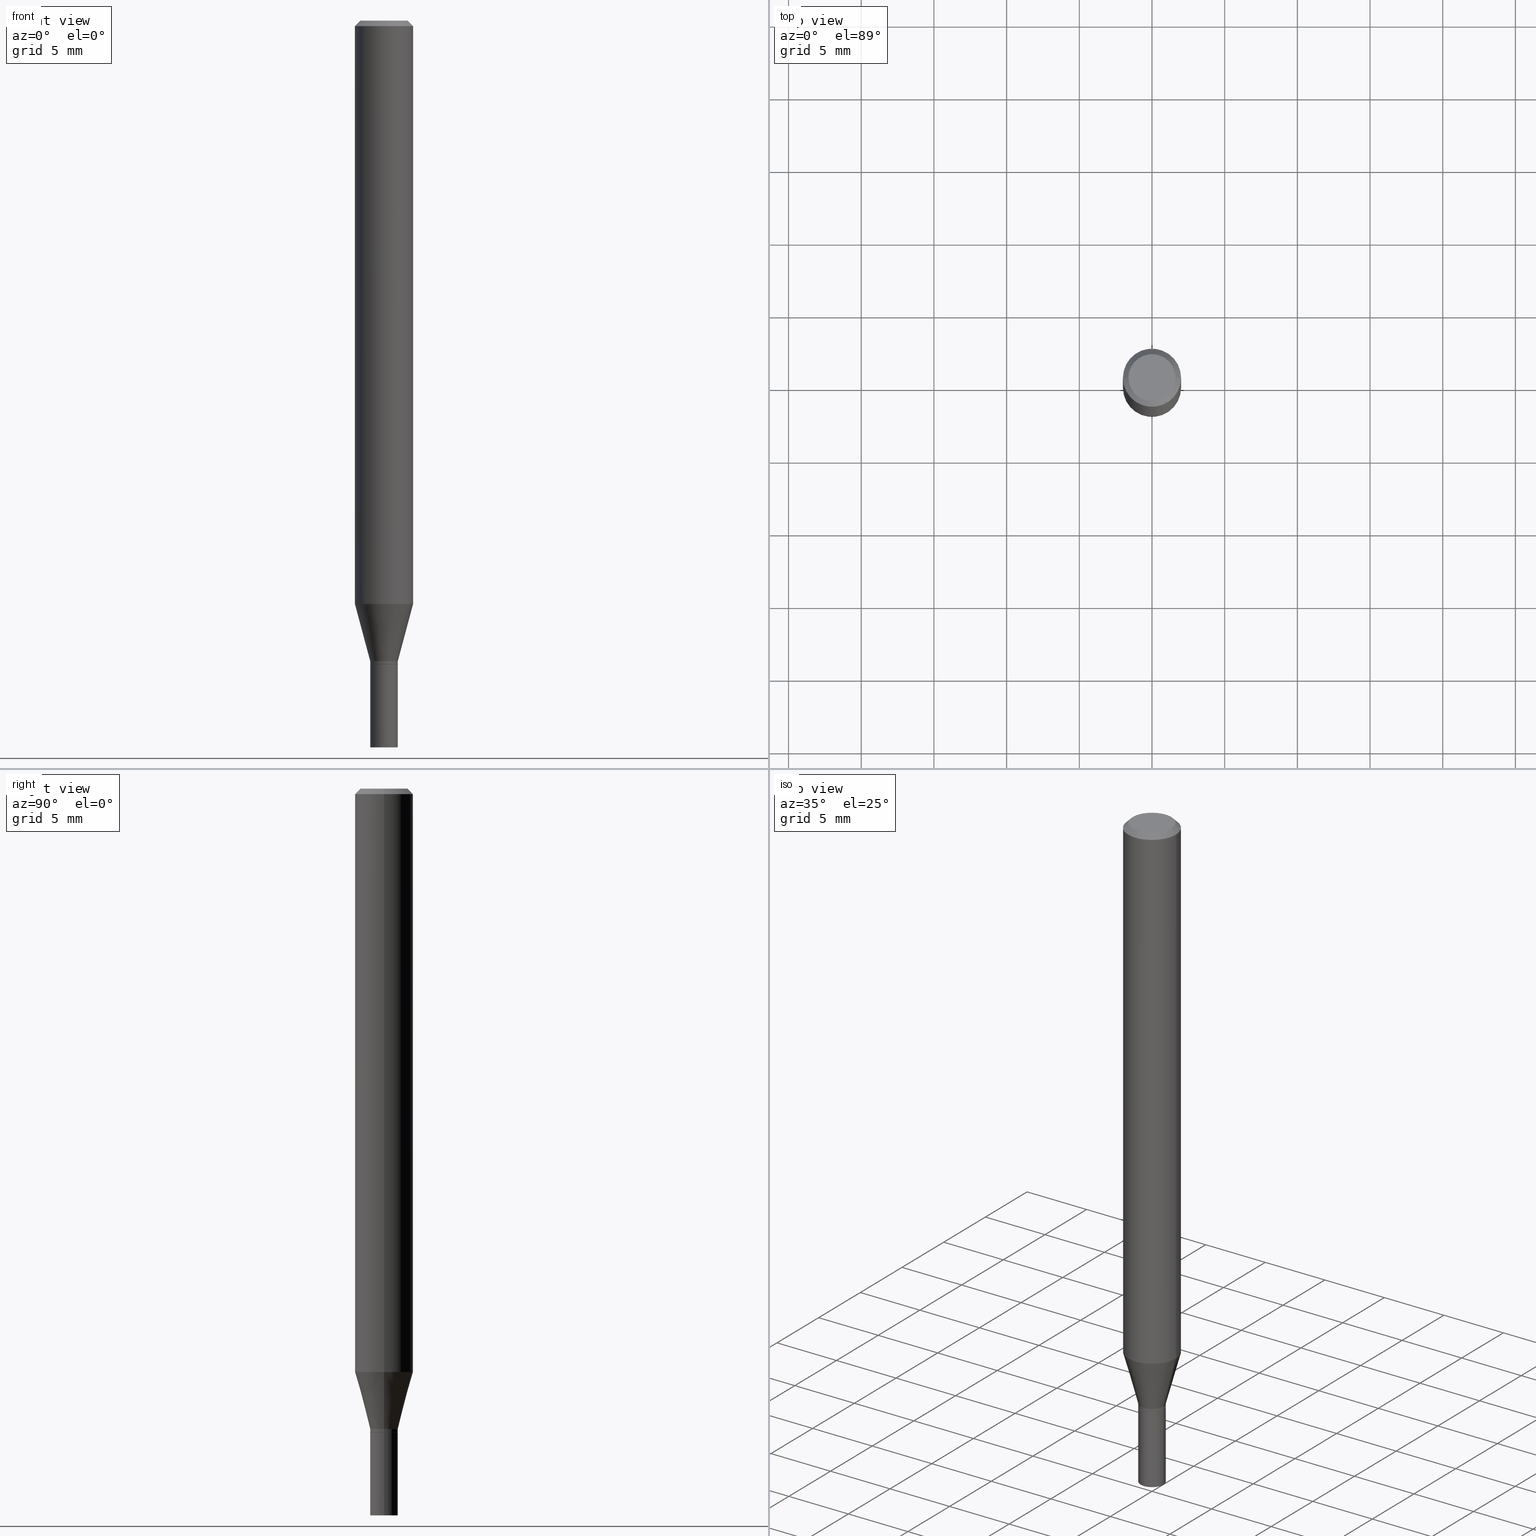
[diagram: canonical four-view strip — front | top / right | iso, engineering-drawing reading convention]
A machine part, canonical four-view strip (front | top / right | iso — engineering-drawing reading convention). The complete STEP part file that produces these views, byte-faithful:
ISO-10303-21;
HEADER;
FILE_DESCRIPTION (( 'STEP AP203' ),
    '1' );
FILE_NAME ('01892.STEP',
    '2024-03-20T02:32:51',
    ( '' ),
    ( '' ),
    'SwSTEP 2.0',
    'SolidWorks 2023',
    '' );
FILE_SCHEMA (( 'CONFIG_CONTROL_DESIGN' ));
ENDSEC;

DATA;
#1 = ORIENTED_EDGE ( 'NONE', *, *, #238, .F. ) ;
#2 = EDGE_CURVE ( 'NONE', #130, #21, #203, .T. ) ;
#3 = DIRECTION ( 'NONE',  ( 1.000000000000000000, 0.000000000000000000, 0.000000000000000000 ) ) ;
#4 = CARTESIAN_POINT ( 'NONE',  ( 8.580606167969272650E-45, -1.225083151159157695E-30, -3.508777599725256540E-16 ) ) ;
#5 = AXIS2_PLACEMENT_3D ( 'NONE', #148, #191, #55 ) ;
#6 = PERSON_AND_ORGANIZATION_ROLE ( 'design_owner' ) ;
#7 = CARTESIAN_POINT ( 'NONE',  ( 0.03690000000000000224, -6.347163925882955111E-15, -1.744100000000000428 ) ) ;
#8 = CALENDAR_DATE ( 2024, 19, 3 ) ;
#9 = FACE_OUTER_BOUND ( 'NONE', #128, .T. ) ;
#10 = PERSON_AND_ORGANIZATION_ROLE ( 'classification_officer' ) ;
#11 = CARTESIAN_POINT ( 'NONE',  ( -0.07875000000000000056, -4.957615527039885735E-15, -1.580179699107028268 ) ) ;
#12 = AXIS2_PLACEMENT_3D ( 'NONE', #247, #212, #113 ) ;
#13 = CONICAL_SURFACE ( 'NONE', #169, 0.03740000000000019698, 0.2617993877991502405 ) ;
#14 = CARTESIAN_POINT ( 'NONE',  ( 0.03739999999999992636, -2.611628041454658579E-16, 1.823690114147676228E-30 ) ) ;
#15 = ADVANCED_FACE ( 'NONE', ( #9 ), #138, .F. ) ;
#16 = DIRECTION ( 'NONE',  ( 1.000000000000000000, -6.982962677686261189E-15, 0.000000000000000000 ) ) ;
#17 = VERTEX_POINT ( 'NONE', #7 ) ;
#18 = CARTESIAN_POINT ( 'NONE',  ( 0.03690000000000000224, -6.347163925882955111E-15, -1.744100000000000428 ) ) ;
#19 = VECTOR ( 'NONE', #201, 39.37007874015748143 ) ;
#20 = FACE_OUTER_BOUND ( 'NONE', #383, .T. ) ;
#21 = VERTEX_POINT ( 'NONE', #286 ) ;
#22 = EDGE_CURVE ( 'NONE', #458, #243, #111, .T. ) ;
#23 = FACE_OUTER_BOUND ( 'NONE', #221, .T. ) ;
#24 = CARTESIAN_POINT ( 'NONE',  ( -0.03740000000000000269, -6.215493826120253928E-15, -1.744100000000000206 ) ) ;
#25 = ADVANCED_FACE ( 'NONE', ( #368 ), #386, .T. ) ;
#26 = CARTESIAN_POINT ( 'NONE',  ( 3.864280162333252269E-29, -5.517167931450965325E-15, -1.580179699107028268 ) ) ;
#27 = AXIS2_PLACEMENT_3D ( 'NONE', #197, #58, #311 ) ;
#28 = ORIENTED_EDGE ( 'NONE', *, *, #109, .F. ) ;
#29 = DIRECTION ( 'NONE',  ( -2.445468806185136597E-29, 3.491481338843145583E-15, 1.000000000000000000 ) ) ;
#30 = ORIENTED_EDGE ( 'NONE', *, *, #415, .F. ) ;
#31 = DIRECTION ( 'NONE',  ( 1.000000000000000000, -6.982962677686261977E-15, 0.000000000000000000 ) ) ;
#32 = ORIENTED_EDGE ( 'NONE', *, *, #375, .T. ) ;
#33 = DIRECTION ( 'NONE',  ( -2.445468806185136597E-29, 3.491481338843145583E-15, 1.000000000000000000 ) ) ;
#34 = CLOSED_SHELL ( 'NONE', ( #359, #241, #244, #52, #407, #173, #102, #25, #90, #15, #177, #139 ) ) ;
#35 = ORIENTED_EDGE ( 'NONE', *, *, #399, .T. ) ;
#36 = AXIS2_PLACEMENT_3D ( 'NONE', #455, #353, #423 ) ;
#37 = DATE_AND_TIME ( #466, #118 ) ;
#38 = ORIENTED_EDGE ( 'NONE', *, *, #22, .T. ) ;
#39 = CARTESIAN_POINT ( 'NONE',  ( -0.07875000000000000056, 4.975360907851462665E-16, -0.01499999999999999944 ) ) ;
#40 = PERSON_AND_ORGANIZATION ( #182, #370 ) ;
#41 = CC_DESIGN_DATE_AND_TIME_ASSIGNMENT ( #330, #441, ( #98 ) ) ;
#42 = CARTESIAN_POINT ( 'NONE',  ( 4.265142144867497014E-29, -6.089492603076330929E-15, -1.744100000000000206 ) ) ;
#43 = AXIS2_PLACEMENT_3D ( 'NONE', #73, #252, #3 ) ;
#44 = CARTESIAN_POINT ( 'NONE',  ( 3.668203209277705088E-31, -5.237222008264718399E-17, -0.01499999999999999944 ) ) ;
#45 = DIRECTION ( 'NONE',  ( -0.7071067811861793118, 7.493145998869024141E-15, 0.7071067811869157227 ) ) ;
#46 = CARTESIAN_POINT ( 'NONE',  ( 0.07875000000000000056, -5.499083108677934443E-16, 3.839989210939299016E-30 ) ) ;
#47 = AXIS2_PLACEMENT_3D ( 'NONE', #452, #319, #126 ) ;
#48 = APPLICATION_CONTEXT ( 'configuration controlled 3d designs of mechanical parts and assemblies' ) ;
#49 = CARTESIAN_POINT ( 'NONE',  ( 4.813905344975441835E-29, -6.872981015512731707E-15, -1.968500000000000139 ) ) ;
#50 = ORIENTED_EDGE ( 'NONE', *, *, #429, .T. ) ;
#51 = CARTESIAN_POINT ( 'NONE',  ( 3.668203209277705088E-31, -5.237222008264718399E-17, -0.01499999999999999944 ) ) ;
#52 = ADVANCED_FACE ( 'NONE', ( #181 ), #79, .T. ) ;
#53 = DIRECTION ( 'NONE',  ( 1.000000000000000000, -6.982962677686274599E-15, 0.000000000000000000 ) ) ;
#54 = AXIS2_PLACEMENT_3D ( 'NONE', #335, #152, #339 ) ;
#55 = DIRECTION ( 'NONE',  ( 1.000000000000000000, -6.982962677686261189E-15, 0.000000000000000000 ) ) ;
#56 = EDGE_CURVE ( 'NONE', #69, #21, #296, .T. ) ;
#57 = DIRECTION ( 'NONE',  ( -2.445468806185136597E-29, 3.491481338843145583E-15, 1.000000000000000000 ) ) ;
#58 = DIRECTION ( 'NONE',  ( -2.445468806185136597E-29, 3.491481338843145583E-15, 1.000000000000000000 ) ) ;
#59 = ORIENTED_EDGE ( 'NONE', *, *, #56, .F. ) ;
#60 = AXIS2_PLACEMENT_3D ( 'NONE', #438, #416, #343 ) ;
#61 = AXIS2_PLACEMENT_3D ( 'NONE', #337, #265, #225 ) ;
#62 = ORIENTED_EDGE ( 'NONE', *, *, #174, .T. ) ;
#63 = CC_DESIGN_PERSON_AND_ORGANIZATION_ASSIGNMENT ( #214, #10, ( #98 ) ) ;
#64 = ORIENTED_EDGE ( 'NONE', *, *, #374, .F. ) ;
#65 = CARTESIAN_POINT ( 'NONE',  ( 3.668203209277705088E-31, -5.237222008264718399E-17, -0.01499999999999999944 ) ) ;
#66 = ORIENTED_EDGE ( 'NONE', *, *, #356, .F. ) ;
#67 = UNCERTAINTY_MEASURE_WITH_UNIT (LENGTH_MEASURE( 1.000000000000000082E-05 ), #323, 'distance_accuracy_value', 'NONE');
#68 = CARTESIAN_POINT ( 'NONE',  ( 0.03740000000000000269, -2.611628041454664002E-16, 1.823690114147680082E-30 ) ) ;
#69 = VERTEX_POINT ( 'NONE', #72 ) ;
#70 = AXIS2_PLACEMENT_3D ( 'NONE', #450, #418, #219 ) ;
#71 = PERSON_AND_ORGANIZATION ( #182, #370 ) ;
#72 = CARTESIAN_POINT ( 'NONE',  ( -0.03690000000000000224, -5.824653106406745603E-15, -1.744100000000000428 ) ) ;
#73 = CARTESIAN_POINT ( 'NONE',  ( 0.000000000000000000, 0.000000000000000000, 0.000000000000000000 ) ) ;
#74 = CARTESIAN_POINT ( 'NONE',  ( 4.451638707024993845E-16, 0.06375000000000000111, -3.980208153375133574E-16 ) ) ;
#75 = APPROVAL_ROLE ( '' ) ;
#76 = CIRCLE ( 'NONE', #453, 0.07875000000000000056 ) ;
#77 = DIMENSIONAL_EXPONENTS ( 1.000000000000000000, 0.000000000000000000, 0.000000000000000000, 0.000000000000000000, 0.000000000000000000, 0.000000000000000000, 0.000000000000000000 ) ;
#78 = APPROVAL_DATE_TIME ( #140, #155 ) ;
#79 = CYLINDRICAL_SURFACE ( 'NONE', #451, 0.07875000000000000056 ) ;
#80 = MANIFOLD_SOLID_BREP ( 'Body-Move/Copy2[1]', #146 ) ;
#81 = DIRECTION ( 'NONE',  ( -2.445468806185136597E-29, 3.491481338843145583E-15, 1.000000000000000000 ) ) ;
#82 = DIRECTION ( 'NONE',  ( 0.7071067811861793118, -2.468850131078399925E-15, 0.7071067811869157227 ) ) ;
#83 = ORIENTED_EDGE ( 'NONE', *, *, #290, .F. ) ;
#84 = AXIS2_PLACEMENT_3D ( 'NONE', #74, #209, #409 ) ;
#85 = CIRCLE ( 'NONE', #195, 0.07875000000000000056 ) ;
#86 = CARTESIAN_POINT ( 'NONE',  ( 4.813905344975441835E-29, -6.872981015512731707E-15, -1.968500000000000139 ) ) ;
#87 = ORIENTED_EDGE ( 'NONE', *, *, #356, .T. ) ;
#88 = CARTESIAN_POINT ( 'NONE',  ( 4.265142144867497574E-29, -6.089492603076331718E-15, -1.744100000000000428 ) ) ;
#89 = CARTESIAN_POINT ( 'NONE',  ( -0.03740000000000000269, 2.657429831742774886E-16, -1.839681723755335040E-30 ) ) ;
#90 = ADVANCED_FACE ( 'NONE', ( #249 ), #331, .F. ) ;
#91 = CIRCLE ( 'NONE', #211, 0.03740000000000000269 ) ;
#92 = DIRECTION ( 'NONE',  ( -2.445468806185136597E-29, 3.491481338843145583E-15, 1.000000000000000000 ) ) ;
#93 = CYLINDRICAL_SURFACE ( 'NONE', #27, 0.03740000000000000269 ) ;
#94 = VERTEX_POINT ( 'NONE', #11 ) ;
#95 =( LENGTH_UNIT ( ) NAMED_UNIT ( * ) SI_UNIT ( $, .METRE. ) );
#96 = ORIENTED_EDGE ( 'NONE', *, *, #213, .T. ) ;
#97 = DIRECTION ( 'NONE',  ( -2.445468806185136597E-29, 3.491481338843145583E-15, 1.000000000000000000 ) ) ;
#98 = SECURITY_CLASSIFICATION ( '', '', #439 ) ;
#99 = ORIENTED_EDGE ( 'NONE', *, *, #200, .T. ) ;
#100 = CARTESIAN_POINT ( 'NONE',  ( 0.07875000000000000056, -6.067076242318758671E-15, -1.580179699107028268 ) ) ;
#101 = VERTEX_POINT ( 'NONE', #145 ) ;
#102 = ADVANCED_FACE ( 'NONE', ( #207 ), #110, .T. ) ;
#103 = CARTESIAN_POINT ( 'NONE',  ( 2.611628041455089987E-16, 0.03739999999999391034, -1.744100000000000206 ) ) ;
#104 = EDGE_LOOP ( 'NONE', ( #150, #87, #420, #170 ) ) ;
#105 = APPROVAL_STATUS ( 'not_yet_approved' ) ;
#106 = CIRCLE ( 'NONE', #176, 0.03690000000000000224 ) ;
#107 = COORDINATED_UNIVERSAL_TIME_OFFSET ( 5, 0, .BEHIND. ) ;
#108 = CARTESIAN_POINT ( 'NONE',  ( 0.03740000000000019698, -6.317137186368903672E-15, -1.734499999999999931 ) ) ;
#109 = EDGE_CURVE ( 'NONE', #101, #357, #324, .T. ) ;
#110 = CYLINDRICAL_SURFACE ( 'NONE', #159, 0.07875000000000000056 ) ;
#111 = LINE ( 'NONE', #39, #270 ) ;
#112 = APPROVAL_STATUS ( 'not_yet_approved' ) ;
#113 = DIRECTION ( 'NONE',  ( 1.000000000000000000, -6.982962677686262766E-15, 0.000000000000000000 ) ) ;
#114 = EDGE_CURVE ( 'NONE', #357, #424, #402, .T. ) ;
#115 = DIRECTION ( 'NONE',  ( -2.445468806185136597E-29, 3.491481338843145583E-15, 1.000000000000000000 ) ) ;
#116 = CARTESIAN_POINT ( 'NONE',  ( 0.06375000000000000111, -5.149965923825457196E-16, -3.508777599725223014E-16 ) ) ;
#117 = VECTOR ( 'NONE', #121, 39.37007874015748143 ) ;
#118 = LOCAL_TIME ( 22, 32, 51.00000000000000000, #408 ) ;
#119 = CARTESIAN_POINT ( 'NONE',  ( -0.03739999999999992636, 2.657429831742769463E-16, -1.839681723755330837E-30 ) ) ;
#120 = EDGE_LOOP ( 'NONE', ( #172, #99, #267, #425 ) ) ;
#121 = DIRECTION ( 'NONE',  ( -2.445468806185136877E-29, 3.491481338843145188E-15, 1.000000000000000000 ) ) ;
#122 = EDGE_CURVE ( 'NONE', #458, #276, #411, .T. ) ;
#123 = CC_DESIGN_PERSON_AND_ORGANIZATION_ASSIGNMENT ( #40, #365, ( #318 ) ) ;
#124 = DIRECTION ( 'NONE',  ( 1.000000000000000000, -6.982962677686265133E-15, 0.000000000000000000 ) ) ;
#125 = CIRCLE ( 'NONE', #47, 0.03739999999999964880 ) ;
#126 = DIRECTION ( 'NONE',  ( 1.000000000000000000, -6.982962677686262766E-15, 0.000000000000000000 ) ) ;
#127 = DIRECTION ( 'NONE',  ( 1.000000000000000000, -6.982962677686261189E-15, 0.000000000000000000 ) ) ;
#128 = EDGE_LOOP ( 'NONE', ( #422, #372 ) ) ;
#129 = DIRECTION ( 'NONE',  ( 1.000000000000000000, -6.982962677686265922E-15, 0.000000000000000000 ) ) ;
#130 = VERTEX_POINT ( 'NONE', #333 ) ;
#131 = LINE ( 'NONE', #68, #228 ) ;
#132 = APPROVAL_PERSON_ORGANIZATION ( #71, #463, #142 ) ;
#133 = ORIENTED_EDGE ( 'NONE', *, *, #258, .T. ) ;
#134 = CARTESIAN_POINT ( 'NONE',  ( -0.03740000000000000269, -6.215493826120253928E-15, -1.968500000000000139 ) ) ;
#135 = VERTEX_POINT ( 'NONE', #175 ) ;
#136 = SHAPE_DEFINITION_REPRESENTATION ( #388, #362 ) ;
#137 = CALENDAR_DATE ( 2024, 19, 3 ) ;
#138 = PLANE ( 'NONE',  #346 ) ;
#139 = ADVANCED_FACE ( 'NONE', ( #361 ), #328, .T. ) ;
#140 = DATE_AND_TIME ( #434, #442 ) ;
#141 = DIRECTION ( 'NONE',  ( -2.445468806185136597E-29, 3.491481338843145583E-15, 1.000000000000000000 ) ) ;
#142 = APPROVAL_ROLE ( '' ) ;
#143 = DIRECTION ( 'NONE',  ( 1.000000000000000000, -6.982962677686265922E-15, 4.876176775795935793E-29 ) ) ;
#144 = PERSON_AND_ORGANIZATION ( #182, #370 ) ;
#145 = CARTESIAN_POINT ( 'NONE',  ( 0.03740000000000019698, -6.317137186368903672E-15, -1.734499999999999931 ) ) ;
#146 = CLOSED_SHELL ( 'NONE', ( #223, #268, #334, #310 ) ) ;
#147 = CONICAL_SURFACE ( 'NONE', #379, 0.03740000000000019698, 0.2617993877991502405 ) ;
#148 = CARTESIAN_POINT ( 'NONE',  ( 4.265142144867497574E-29, -6.089492603076331718E-15, -1.744100000000000428 ) ) ;
#149 = FACE_OUTER_BOUND ( 'NONE', #120, .T. ) ;
#150 = ORIENTED_EDGE ( 'NONE', *, *, #415, .T. ) ;
#151 = EDGE_CURVE ( 'NONE', #21, #320, #266, .T. ) ;
#152 = DIRECTION ( 'NONE',  ( -2.445468806185136597E-29, 3.491481338843145583E-15, 1.000000000000000000 ) ) ;
#153 = AXIS2_PLACEMENT_3D ( 'NONE', #301, #300, #373 ) ;
#154 = FACE_OUTER_BOUND ( 'NONE', #352, .T. ) ;
#155 = APPROVAL ( #206, 'UNSPECIFIED' ) ;
#156 = CARTESIAN_POINT ( 'NONE',  ( 4.265142144867497014E-29, -6.089492603076330929E-15, -1.744100000000000206 ) ) ;
#157 = ORIENTED_EDGE ( 'NONE', *, *, #258, .F. ) ;
#158 = FACE_OUTER_BOUND ( 'NONE', #162, .T. ) ;
#159 = AXIS2_PLACEMENT_3D ( 'NONE', #437, #141, #443 ) ;
#160 = CIRCLE ( 'NONE', #404, 0.03740000000000000269 ) ;
#161 = DIRECTION ( 'NONE',  ( 2.438088387897960049E-29, -3.491481338843145188E-15, -1.000000000000000000 ) ) ;
#162 = EDGE_LOOP ( 'NONE', ( #199, #188 ) ) ;
#163 = CARTESIAN_POINT ( 'NONE',  ( 4.241665644328119485E-29, -6.055974382223435694E-15, -1.734499999999999931 ) ) ;
#164 = APPLICATION_CONTEXT ( 'configuration controlled 3d designs of mechanical parts and assemblies' ) ;
#165 = ORIENTED_EDGE ( 'NONE', *, *, #2, .F. ) ;
#166 = LINE ( 'NONE', #275, #246 ) ;
#167 = EDGE_LOOP ( 'NONE', ( #338, #350, #281, #278 ) ) ;
#168 = DIRECTION ( 'NONE',  ( 1.000000000000000000, -6.982962677686266711E-15, 4.876176775795935232E-29 ) ) ;
#169 = AXIS2_PLACEMENT_3D ( 'NONE', #306, #378, #124 ) ;
#170 = ORIENTED_EDGE ( 'NONE', *, *, #114, .F. ) ;
#171 = APPROVAL_DATE_TIME ( #37, #217 ) ;
#172 = ORIENTED_EDGE ( 'NONE', *, *, #293, .T. ) ;
#173 = ADVANCED_FACE ( 'NONE', ( #20 ), #13, .T. ) ;
#174 = EDGE_CURVE ( 'NONE', #130, #101, #269, .T. ) ;
#175 = CARTESIAN_POINT ( 'NONE',  ( 0.03740000000000000269, -6.350655407221797329E-15, -1.744100000000000206 ) ) ;
#176 = AXIS2_PLACEMENT_3D ( 'NONE', #382, #29, #127 ) ;
#177 = ADVANCED_FACE ( 'NONE', ( #185 ), #271, .T. ) ;
#178 = PERSON_AND_ORGANIZATION ( #182, #370 ) ;
#179 = DIRECTION ( 'NONE',  ( 2.445468806185136597E-29, -3.491481338843145583E-15, -1.000000000000000000 ) ) ;
#180 = DATE_AND_TIME ( #137, #255 ) ;
#181 = FACE_OUTER_BOUND ( 'NONE', #104, .T. ) ;
#182 = PERSON ( 'UNSPECIFIED', 'UNSPECIFIED', 'UNSPECIFIED', ('UNSPECIFIED'), ('UNSPECIFIED'), ('UNSPECIFIED') ) ;
#183 = DIRECTION ( 'NONE',  ( 1.000000000000000000, -6.982962677686265922E-15, 4.852736867747365646E-29 ) ) ;
#184 = PRODUCT_RELATED_PRODUCT_CATEGORY ( 'detail', '', ( #297 ) ) ;
#185 = FACE_OUTER_BOUND ( 'NONE', #390, .T. ) ;
#186 = PLANE ( 'NONE',  #61 ) ;
#187 = LINE ( 'NONE', #230, #412 ) ;
#188 = ORIENTED_EDGE ( 'NONE', *, *, #394, .T. ) ;
#189 = CIRCLE ( 'NONE', #325, 0.07875000000000000056 ) ;
#190 = DIRECTION ( 'NONE',  ( -2.445468806185136877E-29, 3.491481338843145188E-15, 1.000000000000000000 ) ) ;
#191 = DIRECTION ( 'NONE',  ( -2.445468806185136597E-29, 3.491481338843145583E-15, 1.000000000000000000 ) ) ;
#192 = CC_DESIGN_DATE_AND_TIME_ASSIGNMENT ( #180, #401, ( #224 ) ) ;
#193 = CARTESIAN_POINT ( 'NONE',  ( 4.265142144867497014E-29, -6.089492603076330929E-15, -1.744100000000000206 ) ) ;
#194 = AXIS2_PLACEMENT_3D ( 'NONE', #44, #179, #406 ) ;
#195 = AXIS2_PLACEMENT_3D ( 'NONE', #51, #115, #449 ) ;
#196 = LOCAL_TIME ( 22, 32, 51.00000000000000000, #107 ) ;
#197 = CARTESIAN_POINT ( 'NONE',  ( 0.000000000000000000, 0.000000000000000000, 0.000000000000000000 ) ) ;
#198 = ORIENTED_EDGE ( 'NONE', *, *, #393, .T. ) ;
#199 = ORIENTED_EDGE ( 'NONE', *, *, #282, .T. ) ;
#200 = EDGE_CURVE ( 'NONE', #322, #403, #227, .T. ) ;
#201 = DIRECTION ( 'NONE',  ( -0.2588190451025215166, 5.211531920934551042E-15, 0.9659258262890679791 ) ) ;
#202 = EDGE_LOOP ( 'NONE', ( #66, #347, #237, #456 ) ) ;
#203 = CIRCLE ( 'NONE', #12, 0.03739999999999964880 ) ;
#204 = CIRCLE ( 'NONE', #220, 0.07875000000000000056 ) ;
#205 = EDGE_LOOP ( 'NONE', ( #432, #50, #62, #157 ) ) ;
#206 = APPROVAL_STATUS ( 'not_yet_approved' ) ;
#207 = FACE_OUTER_BOUND ( 'NONE', #202, .T. ) ;
#208 = APPLICATION_PROTOCOL_DEFINITION ( 'international standard', 'config_control_design', 1994, #48 ) ;
#209 = DIRECTION ( 'NONE',  ( 2.438088387897960049E-29, -3.491481338843145188E-15, -1.000000000000000000 ) ) ;
#210 = AXIS2_PLACEMENT_3D ( 'NONE', #4, #81, #183 ) ;
#211 = AXIS2_PLACEMENT_3D ( 'NONE', #49, #261, #303 ) ;
#212 = DIRECTION ( 'NONE',  ( -2.445468806185136597E-29, 3.491481338843145583E-15, 1.000000000000000000 ) ) ;
#213 = EDGE_CURVE ( 'NONE', #276, #424, #187, .T. ) ;
#214 = PERSON_AND_ORGANIZATION ( #182, #370 ) ;
#215 = CARTESIAN_POINT ( 'NONE',  ( 0.000000000000000000, 0.000000000000000000, 0.000000000000000000 ) ) ;
#216 = DIRECTION ( 'NONE',  ( 1.000000000000000000, -6.982962677686265922E-15, 4.876176775795935232E-29 ) ) ;
#217 = APPROVAL ( #112, 'UNSPECIFIED' ) ;
#218 = EDGE_CURVE ( 'NONE', #69, #17, #426, .T. ) ;
#219 = DIRECTION ( 'NONE',  ( 1.000000000000000000, -6.982962677686266711E-15, 4.876176775795935793E-29 ) ) ;
#220 = AXIS2_PLACEMENT_3D ( 'NONE', #26, #97, #308 ) ;
#221 = EDGE_LOOP ( 'NONE', ( #446, #387, #165, #83 ) ) ;
#222 = DIRECTION ( 'NONE',  ( -1.000000000000000000, 6.982962677686265922E-15, 0.000000000000000000 ) ) ;
#223 = ADVANCED_FACE ( 'NONE', ( #149 ), #444, .T. ) ;
#224 = PRODUCT_DEFINITION ( 'UNKNOWN', '', #318, #384 ) ;
#225 = DIRECTION ( 'NONE',  ( 1.000000000000000000, -6.982962677686265922E-15, 4.876176775795935793E-29 ) ) ;
#226 = MANIFOLD_SOLID_BREP ( 'Body-Move/Copy2[2]', #34 ) ;
#227 = LINE ( 'NONE', #89, #253 ) ;
#228 = VECTOR ( 'NONE', #315, 39.37007874015748143 ) ;
#229 = CC_DESIGN_APPROVAL ( #217, ( #98 ) ) ;
#230 = CARTESIAN_POINT ( 'NONE',  ( 0.07875000000000000056, -5.926364374071552647E-16, -0.01499999999999999944 ) ) ;
#231 = CARTESIAN_POINT ( 'NONE',  ( -0.03740000000000019698, -5.373923463044521625E-15, -1.734499999999999931 ) ) ;
#232 = ORIENTED_EDGE ( 'NONE', *, *, #394, .F. ) ;
#233 = LINE ( 'NONE', #459, #19 ) ;
#234 = ORIENTED_EDGE ( 'NONE', *, *, #122, .F. ) ;
#235 = AXIS2_PLACEMENT_3D ( 'NONE', #304, #413, #222 ) ;
#236 = FACE_OUTER_BOUND ( 'NONE', #396, .T. ) ;
#237 = ORIENTED_EDGE ( 'NONE', *, *, #114, .T. ) ;
#238 = EDGE_CURVE ( 'NONE', #322, #448, #160, .T. ) ;
#239 = CARTESIAN_POINT ( 'NONE',  ( 0.000000000000000000, 0.000000000000000000, 0.000000000000000000 ) ) ;
#240 = ORIENTED_EDGE ( 'NONE', *, *, #218, .T. ) ;
#241 = ADVANCED_FACE ( 'NONE', ( #23 ), #263, .T. ) ;
#242 = FACE_OUTER_BOUND ( 'NONE', #167, .T. ) ;
#243 = VERTEX_POINT ( 'NONE', #381 ) ;
#244 = ADVANCED_FACE ( 'NONE', ( #154 ), #369, .T. ) ;
#245 = VECTOR ( 'NONE', #291, 39.37007874015748143 ) ;
#246 = VECTOR ( 'NONE', #431, 39.37007874015748143 ) ;
#247 = CARTESIAN_POINT ( 'NONE',  ( 4.263919410464404773E-29, -6.087746862406909425E-15, -1.743600000000000261 ) ) ;
#248 = PERSON_AND_ORGANIZATION_ROLE ( 'creator' ) ;
#249 = FACE_OUTER_BOUND ( 'NONE', #307, .T. ) ;
#250 =( NAMED_UNIT ( * ) PLANE_ANGLE_UNIT ( ) SI_UNIT ( $, .RADIAN. ) );
#251 = ORIENTED_EDGE ( 'NONE', *, *, #109, .T. ) ;
#252 = DIRECTION ( 'NONE',  ( 0.000000000000000000, 0.000000000000000000, 1.000000000000000000 ) ) ;
#253 = VECTOR ( 'NONE', #190, 39.37007874015748143 ) ;
#254 = DIRECTION ( 'NONE',  ( -0.7071067811865557884, 2.468850131082343835E-15, -0.7071067811865392461 ) ) ;
#255 = LOCAL_TIME ( 22, 32, 51.00000000000000000, #329 ) ;
#256 = APPROVAL_ROLE ( '' ) ;
#257 = DIRECTION ( 'NONE',  ( -2.445468806185136877E-29, 3.491481338843145188E-15, 1.000000000000000000 ) ) ;
#258 = EDGE_CURVE ( 'NONE', #320, #101, #279, .T. ) ;
#259 = DIRECTION ( 'NONE',  ( 1.000000000000000000, -6.982962677686274599E-15, 0.000000000000000000 ) ) ;
#260 = EDGE_CURVE ( 'NONE', #243, #424, #85, .T. ) ;
#261 = DIRECTION ( 'NONE',  ( -2.445468806185136597E-29, 3.491481338843145583E-15, 1.000000000000000000 ) ) ;
#262 = VECTOR ( 'NONE', #371, 39.37007874015748143 ) ;
#263 = CONICAL_SURFACE ( 'NONE', #54, 0.03690000000000000224, 0.7853981633969275844 ) ;
#264 = ORIENTED_EDGE ( 'NONE', *, *, #200, .F. ) ;
#265 = DIRECTION ( 'NONE',  ( -2.438088387897960049E-29, 3.491481338843145188E-15, 1.000000000000000000 ) ) ;
#266 = LINE ( 'NONE', #119, #262 ) ;
#267 = ORIENTED_EDGE ( 'NONE', *, *, #282, .F. ) ;
#268 = ADVANCED_FACE ( 'NONE', ( #445 ), #186, .F. ) ;
#269 = LINE ( 'NONE', #14, #117 ) ;
#270 = VECTOR ( 'NONE', #254, 39.37007874015748143 ) ;
#271 = CONICAL_SURFACE ( 'NONE', #5, 0.03690000000000000224, 0.7853981633969275844 ) ;
#272 = CARTESIAN_POINT ( 'NONE',  ( 0.03740000000000000269, -7.134143819658198107E-15, -1.968500000000000139 ) ) ;
#273 = ORIENTED_EDGE ( 'NONE', *, *, #374, .T. ) ;
#274 = CC_DESIGN_PERSON_AND_ORGANIZATION_ASSIGNMENT ( #326, #6, ( #297 ) ) ;
#275 = CARTESIAN_POINT ( 'NONE',  ( -0.07875000000000000056, 5.595524044110789003E-16, -3.873661383575737792E-30 ) ) ;
#276 = VERTEX_POINT ( 'NONE', #116 ) ;
#277 = DIRECTION ( 'NONE',  ( -2.445468806185136597E-29, 3.491481338843145583E-15, 1.000000000000000000 ) ) ;
#278 = ORIENTED_EDGE ( 'NONE', *, *, #174, .F. ) ;
#279 = CIRCLE ( 'NONE', #153, 0.03740000000000019698 ) ;
#280 = DIRECTION ( 'NONE',  ( -2.445468806185136597E-29, 3.491481338843145583E-15, 1.000000000000000000 ) ) ;
#281 = ORIENTED_EDGE ( 'NONE', *, *, #399, .F. ) ;
#282 = EDGE_CURVE ( 'NONE', #135, #403, #440, .T. ) ;
#283 = DIRECTION ( 'NONE',  ( -2.445468806185136597E-29, 3.491481338843145583E-15, 1.000000000000000000 ) ) ;
#284 = ORIENTED_EDGE ( 'NONE', *, *, #238, .T. ) ;
#285 = PERSON_AND_ORGANIZATION ( #182, #370 ) ;
#286 = CARTESIAN_POINT ( 'NONE',  ( -0.03739999999999964880, -5.822003879232635191E-15, -1.743600000000000261 ) ) ;
#287 = AXIS2_PLACEMENT_3D ( 'NONE', #239, #395, #168 ) ;
#288 = DIRECTION ( 'NONE',  ( -2.445468806185136597E-29, 3.491481338843145583E-15, 1.000000000000000000 ) ) ;
#289 = COORDINATED_UNIVERSAL_TIME_OFFSET ( 5, 0, .BEHIND. ) ;
#290 = EDGE_CURVE ( 'NONE', #17, #130, #410, .T. ) ;
#291 = DIRECTION ( 'NONE',  ( 0.2588190451025215166, 1.565188264969620784E-15, 0.9659258262890679791 ) ) ;
#292 = DATE_AND_TIME ( #8, #196 ) ;
#293 = EDGE_CURVE ( 'NONE', #448, #322, #91, .T. ) ;
#294 = APPLICATION_PROTOCOL_DEFINITION ( 'international standard', 'config_control_design', 1994, #164 ) ;
#295 = AXIS2_PLACEMENT_3D ( 'NONE', #88, #376, #16 ) ;
#296 = LINE ( 'NONE', #367, #397 ) ;
#297 = PRODUCT ( '01892', '01892', '', ( #321 ) ) ;
#298 = CC_DESIGN_PERSON_AND_ORGANIZATION_ASSIGNMENT ( #436, #358, ( #224 ) ) ;
#299 = CC_DESIGN_SECURITY_CLASSIFICATION ( #98, ( #318 ) ) ;
#300 = DIRECTION ( 'NONE',  ( -2.445468806185136597E-29, 3.491481338843145583E-15, 1.000000000000000000 ) ) ;
#301 = CARTESIAN_POINT ( 'NONE',  ( 4.241665644328119485E-29, -6.055974382223435694E-15, -1.734499999999999931 ) ) ;
#302 = CC_DESIGN_PERSON_AND_ORGANIZATION_ASSIGNMENT ( #144, #248, ( #318 ) ) ;
#303 = DIRECTION ( 'NONE',  ( 1.000000000000000000, -6.982962677686274599E-15, 0.000000000000000000 ) ) ;
#304 = CARTESIAN_POINT ( 'NONE',  ( 3.668203209277705088E-31, -5.237222008264718399E-17, -0.01499999999999999944 ) ) ;
#305 = EDGE_CURVE ( 'NONE', #94, #357, #189, .T. ) ;
#306 = CARTESIAN_POINT ( 'NONE',  ( 4.241665644328119485E-29, -6.055974382223435694E-15, -1.734499999999999931 ) ) ;
#307 = EDGE_LOOP ( 'NONE', ( #316, #430 ) ) ;
#308 = DIRECTION ( 'NONE',  ( 1.000000000000000000, -6.982962677686261977E-15, 0.000000000000000000 ) ) ;
#309 = CIRCLE ( 'NONE', #364, 0.06375000000000000111 ) ;
#310 = ADVANCED_FACE ( 'NONE', ( #158 ), #457, .F. ) ;
#311 = DIRECTION ( 'NONE',  ( 1.000000000000000000, -6.982962677686266711E-15, 4.876176775795935793E-29 ) ) ;
#312 = EDGE_LOOP ( 'NONE', ( #354, #234, #38, #380 ) ) ;
#313 = CARTESIAN_POINT ( 'NONE',  ( -0.06375000000000000111, 4.713499807438222338E-16, -3.508777599725288588E-16 ) ) ;
#314 = ORIENTED_EDGE ( 'NONE', *, *, #305, .F. ) ;
#315 = DIRECTION ( 'NONE',  ( -2.445468806185136877E-29, 3.491481338843145188E-15, 1.000000000000000000 ) ) ;
#316 = ORIENTED_EDGE ( 'NONE', *, *, #122, .T. ) ;
#317 = AXIS2_PLACEMENT_3D ( 'NONE', #156, #57, #259 ) ;
#318 = PRODUCT_DEFINITION_FORMATION_WITH_SPECIFIED_SOURCE ( 'ANY', '', #297, .NOT_KNOWN. ) ;
#319 = DIRECTION ( 'NONE',  ( -2.445468806185136597E-29, 3.491481338843145583E-15, 1.000000000000000000 ) ) ;
#320 = VERTEX_POINT ( 'NONE', #231 ) ;
#321 = MECHANICAL_CONTEXT ( 'NONE', #164, 'mechanical' ) ;
#322 = VERTEX_POINT ( 'NONE', #134 ) ;
#323 =( CONVERSION_BASED_UNIT ( 'INCH', #351 ) LENGTH_UNIT ( ) NAMED_UNIT ( #77 ) );
#324 = LINE ( 'NONE', #108, #245 ) ;
#325 = AXIS2_PLACEMENT_3D ( 'NONE', #414, #283, #31 ) ;
#326 = PERSON_AND_ORGANIZATION ( #182, #370 ) ;
#327 = APPROVAL_PERSON_ORGANIZATION ( #285, #217, #256 ) ;
#328 = CYLINDRICAL_SURFACE ( 'NONE', #60, 0.03739999999999992636 ) ;
#329 = COORDINATED_UNIVERSAL_TIME_OFFSET ( 5, 0, .BEHIND. ) ;
#330 = DATE_AND_TIME ( #405, #454 ) ;
#331 = PLANE ( 'NONE',  #84 ) ;
#332 = VECTOR ( 'NONE', #82, 39.37007874015748143 ) ;
#333 = CARTESIAN_POINT ( 'NONE',  ( 0.03739999999999964880, -6.348909666552373459E-15, -1.743600000000000261 ) ) ;
#334 = ADVANCED_FACE ( 'NONE', ( #236 ), #93, .T. ) ;
#335 = CARTESIAN_POINT ( 'NONE',  ( 4.265142144867497574E-29, -6.089492603076331718E-15, -1.744100000000000428 ) ) ;
#336 = ORIENTED_EDGE ( 'NONE', *, *, #290, .T. ) ;
#337 = CARTESIAN_POINT ( 'NONE',  ( 4.848906058769445083E-29, -6.822858001242805551E-15, -1.968500000000000139 ) ) ;
#338 = ORIENTED_EDGE ( 'NONE', *, *, #2, .T. ) ;
#339 = DIRECTION ( 'NONE',  ( 1.000000000000000000, -6.982962677686261189E-15, 0.000000000000000000 ) ) ;
#340 = AXIS2_PLACEMENT_3D ( 'NONE', #103, #161, #421 ) ;
#341 = ORIENTED_EDGE ( 'NONE', *, *, #293, .F. ) ;
#342 = EDGE_CURVE ( 'NONE', #276, #458, #309, .T. ) ;
#343 = DIRECTION ( 'NONE',  ( 1.000000000000000000, -6.982962677686266711E-15, 4.876176775795935232E-29 ) ) ;
#344 = DIRECTION ( 'NONE',  ( -2.445468806185136597E-29, 3.491481338843145583E-15, 1.000000000000000000 ) ) ;
#345 = DIRECTION ( 'NONE',  ( 1.000000000000000000, -6.982962677686265133E-15, 0.000000000000000000 ) ) ;
#346 = AXIS2_PLACEMENT_3D ( 'NONE', #42, #400, #143 ) ;
#347 = ORIENTED_EDGE ( 'NONE', *, *, #305, .T. ) ;
#348 = APPROVAL_PERSON_ORGANIZATION ( #178, #155, #75 ) ;
#349 = CARTESIAN_POINT ( 'NONE',  ( 8.580606167969272650E-45, -1.225083151159157695E-30, -3.508777599725256540E-16 ) ) ;
#350 = ORIENTED_EDGE ( 'NONE', *, *, #151, .T. ) ;
#351 = LENGTH_MEASURE_WITH_UNIT ( LENGTH_MEASURE( 0.02539999999999999897 ), #95 );
#352 = EDGE_LOOP ( 'NONE', ( #417, #96, #198, #460 ) ) ;
#353 = DIRECTION ( 'NONE',  ( -2.445468806185136597E-29, 3.491481338843145583E-15, 1.000000000000000000 ) ) ;
#354 = ORIENTED_EDGE ( 'NONE', *, *, #213, .F. ) ;
#355 =( NAMED_UNIT ( * ) SI_UNIT ( $, .STERADIAN. ) SOLID_ANGLE_UNIT ( ) );
#356 = EDGE_CURVE ( 'NONE', #94, #243, #166, .T. ) ;
#357 = VERTEX_POINT ( 'NONE', #100 ) ;
#358 = PERSON_AND_ORGANIZATION_ROLE ( 'creator' ) ;
#359 = ADVANCED_FACE ( 'NONE', ( #242 ), #391, .T. ) ;
#360 = APPROVAL_DATE_TIME ( #292, #463 ) ;
#361 = FACE_OUTER_BOUND ( 'NONE', #205, .T. ) ;
#362 = ADVANCED_BREP_SHAPE_REPRESENTATION ( '01892', ( #80, #226, #43 ), #398 ) ;
#363 = VECTOR ( 'NONE', #257, 39.37007874015748143 ) ;
#364 = AXIS2_PLACEMENT_3D ( 'NONE', #349, #280, #428 ) ;
#365 = PERSON_AND_ORGANIZATION_ROLE ( 'design_supplier' ) ;
#366 = COORDINATED_UNIVERSAL_TIME_OFFSET ( 5, 0, .BEHIND. ) ;
#367 = CARTESIAN_POINT ( 'NONE',  ( -0.03690000000000000224, -5.827302333580855226E-15, -1.744100000000000428 ) ) ;
#368 = FACE_OUTER_BOUND ( 'NONE', #312, .T. ) ;
#369 = CONICAL_SURFACE ( 'NONE', #235, 0.07875000000000000056, 0.7853981633974600474 ) ;
#370 = ORGANIZATION ( 'UNSPECIFIED', 'UNSPECIFIED', '' ) ;
#371 = DIRECTION ( 'NONE',  ( -2.445468806185136877E-29, 3.491481338843145188E-15, 1.000000000000000000 ) ) ;
#372 = ORIENTED_EDGE ( 'NONE', *, *, #218, .F. ) ;
#373 = DIRECTION ( 'NONE',  ( 1.000000000000000000, -6.982962677686265133E-15, 0.000000000000000000 ) ) ;
#374 = EDGE_CURVE ( 'NONE', #320, #94, #233, .T. ) ;
#375 = EDGE_CURVE ( 'NONE', #448, #135, #131, .T. ) ;
#376 = DIRECTION ( 'NONE',  ( -2.445468806185136597E-29, 3.491481338843145583E-15, 1.000000000000000000 ) ) ;
#377 = EDGE_LOOP ( 'NONE', ( #341, #1 ) ) ;
#378 = DIRECTION ( 'NONE',  ( -2.445468806185136597E-29, 3.491481338843145583E-15, 1.000000000000000000 ) ) ;
#379 = AXIS2_PLACEMENT_3D ( 'NONE', #163, #33, #345 ) ;
#380 = ORIENTED_EDGE ( 'NONE', *, *, #260, .T. ) ;
#381 = CARTESIAN_POINT ( 'NONE',  ( -0.07875000000000000056, -2.225217671355727598E-15, -0.01499999999999999944 ) ) ;
#382 = CARTESIAN_POINT ( 'NONE',  ( 4.265142144867497574E-29, -6.089492603076331718E-15, -1.744100000000000428 ) ) ;
#383 = EDGE_LOOP ( 'NONE', ( #64, #133, #251, #314 ) ) ;
#384 = DESIGN_CONTEXT ( 'detailed design', #48, 'design' ) ;
#385 = FACE_OUTER_BOUND ( 'NONE', #465, .T. ) ;
#386 = CONICAL_SURFACE ( 'NONE', #194, 0.07875000000000000056, 0.7853981633974600474 ) ;
#387 = ORIENTED_EDGE ( 'NONE', *, *, #56, .T. ) ;
#388 = PRODUCT_DEFINITION_SHAPE ( 'NONE', 'NONE',  #224 ) ;
#389 = CARTESIAN_POINT ( 'NONE',  ( 0.07875000000000000056, -6.022805309504406221E-16, -0.01499999999999999944 ) ) ;
#390 = EDGE_LOOP ( 'NONE', ( #59, #240, #336, #392 ) ) ;
#391 = CYLINDRICAL_SURFACE ( 'NONE', #287, 0.03739999999999992636 ) ;
#392 = ORIENTED_EDGE ( 'NONE', *, *, #429, .F. ) ;
#393 = EDGE_CURVE ( 'NONE', #424, #243, #76, .T. ) ;
#394 = EDGE_CURVE ( 'NONE', #403, #135, #419, .T. ) ;
#395 = DIRECTION ( 'NONE',  ( -2.445468806185136597E-29, 3.491481338843145583E-15, 1.000000000000000000 ) ) ;
#396 = EDGE_LOOP ( 'NONE', ( #264, #284, #32, #232 ) ) ;
#397 = VECTOR ( 'NONE', #45, 39.37007874015748143 ) ;
#398 =( GEOMETRIC_REPRESENTATION_CONTEXT ( 3 ) GLOBAL_UNCERTAINTY_ASSIGNED_CONTEXT ( ( #67 ) ) GLOBAL_UNIT_ASSIGNED_CONTEXT ( ( #323, #250, #355 ) ) REPRESENTATION_CONTEXT ( 'NONE', 'WORKASPACE' ) );
#399 = EDGE_CURVE ( 'NONE', #101, #320, #461, .T. ) ;
#400 = DIRECTION ( 'NONE',  ( -2.438088387897960049E-29, 3.491481338843145188E-15, 1.000000000000000000 ) ) ;
#401 = DATE_TIME_ROLE ( 'creation_date' ) ;
#402 = LINE ( 'NONE', #46, #363 ) ;
#403 = VERTEX_POINT ( 'NONE', #24 ) ;
#404 = AXIS2_PLACEMENT_3D ( 'NONE', #86, #92, #53 ) ;
#405 = CALENDAR_DATE ( 2024, 19, 3 ) ;
#406 = DIRECTION ( 'NONE',  ( -1.000000000000000000, 6.982962677686265922E-15, 0.000000000000000000 ) ) ;
#407 = ADVANCED_FACE ( 'NONE', ( #385 ), #147, .T. ) ;
#408 = COORDINATED_UNIVERSAL_TIME_OFFSET ( 5, 0, .BEHIND. ) ;
#409 = DIRECTION ( 'NONE',  ( -1.000000000000000000, 6.982962677686265922E-15, -4.876176775795935793E-29 ) ) ;
#410 = LINE ( 'NONE', #18, #332 ) ;
#411 = CIRCLE ( 'NONE', #210, 0.06375000000000000111 ) ;
#412 = VECTOR ( 'NONE', #447, 39.37007874015748143 ) ;
#413 = DIRECTION ( 'NONE',  ( 2.445468806185136597E-29, -3.491481338843145583E-15, -1.000000000000000000 ) ) ;
#414 = CARTESIAN_POINT ( 'NONE',  ( 3.864280162333252269E-29, -5.517167931450965325E-15, -1.580179699107028268 ) ) ;
#415 = EDGE_CURVE ( 'NONE', #357, #94, #204, .T. ) ;
#416 = DIRECTION ( 'NONE',  ( -2.445468806185136597E-29, 3.491481338843145583E-15, 1.000000000000000000 ) ) ;
#417 = ORIENTED_EDGE ( 'NONE', *, *, #342, .F. ) ;
#418 = DIRECTION ( 'NONE',  ( -2.445468806185136597E-29, 3.491481338843145583E-15, 1.000000000000000000 ) ) ;
#419 = CIRCLE ( 'NONE', #435, 0.03740000000000000269 ) ;
#420 = ORIENTED_EDGE ( 'NONE', *, *, #393, .F. ) ;
#421 = DIRECTION ( 'NONE',  ( -1.000000000000000000, 6.982962677686265922E-15, -4.876176775795935793E-29 ) ) ;
#422 = ORIENTED_EDGE ( 'NONE', *, *, #433, .F. ) ;
#423 = DIRECTION ( 'NONE',  ( 1.000000000000000000, -6.982962677686265133E-15, 0.000000000000000000 ) ) ;
#424 = VERTEX_POINT ( 'NONE', #389 ) ;
#425 = ORIENTED_EDGE ( 'NONE', *, *, #375, .F. ) ;
#426 = CIRCLE ( 'NONE', #295, 0.03690000000000000224 ) ;
#427 = CC_DESIGN_APPROVAL ( #463, ( #318 ) ) ;
#428 = DIRECTION ( 'NONE',  ( 1.000000000000000000, -6.982962677686265922E-15, 4.852736867747365646E-29 ) ) ;
#429 = EDGE_CURVE ( 'NONE', #21, #130, #125, .T. ) ;
#430 = ORIENTED_EDGE ( 'NONE', *, *, #342, .T. ) ;
#431 = DIRECTION ( 'NONE',  ( -2.445468806185136877E-29, 3.491481338843145188E-15, 1.000000000000000000 ) ) ;
#432 = ORIENTED_EDGE ( 'NONE', *, *, #151, .F. ) ;
#433 = EDGE_CURVE ( 'NONE', #17, #69, #106, .T. ) ;
#434 = CALENDAR_DATE ( 2024, 19, 3 ) ;
#435 = AXIS2_PLACEMENT_3D ( 'NONE', #193, #277, #464 ) ;
#436 = PERSON_AND_ORGANIZATION ( #182, #370 ) ;
#437 = CARTESIAN_POINT ( 'NONE',  ( 0.000000000000000000, 0.000000000000000000, 0.000000000000000000 ) ) ;
#438 = CARTESIAN_POINT ( 'NONE',  ( 0.000000000000000000, 0.000000000000000000, 0.000000000000000000 ) ) ;
#439 = SECURITY_CLASSIFICATION_LEVEL ( 'unclassified' ) ;
#440 = CIRCLE ( 'NONE', #317, 0.03740000000000000269 ) ;
#441 = DATE_TIME_ROLE ( 'classification_date' ) ;
#442 = LOCAL_TIME ( 22, 32, 51.00000000000000000, #366 ) ;
#443 = DIRECTION ( 'NONE',  ( 1.000000000000000000, -6.982962677686265922E-15, 4.876176775795935232E-29 ) ) ;
#444 = CYLINDRICAL_SURFACE ( 'NONE', #70, 0.03740000000000000269 ) ;
#445 = FACE_OUTER_BOUND ( 'NONE', #377, .T. ) ;
#446 = ORIENTED_EDGE ( 'NONE', *, *, #433, .T. ) ;
#447 = DIRECTION ( 'NONE',  ( 0.7071067811865557884, -7.319954787623282867E-15, -0.7071067811865392461 ) ) ;
#448 = VERTEX_POINT ( 'NONE', #272 ) ;
#449 = DIRECTION ( 'NONE',  ( 1.000000000000000000, -6.982962677686265922E-15, 0.000000000000000000 ) ) ;
#450 = CARTESIAN_POINT ( 'NONE',  ( 0.000000000000000000, 0.000000000000000000, 0.000000000000000000 ) ) ;
#451 = AXIS2_PLACEMENT_3D ( 'NONE', #215, #288, #216 ) ;
#452 = CARTESIAN_POINT ( 'NONE',  ( 4.263919410464404773E-29, -6.087746862406909425E-15, -1.743600000000000261 ) ) ;
#453 = AXIS2_PLACEMENT_3D ( 'NONE', #65, #344, #129 ) ;
#454 = LOCAL_TIME ( 22, 32, 51.00000000000000000, #289 ) ;
#455 = CARTESIAN_POINT ( 'NONE',  ( 4.241665644328119485E-29, -6.055974382223435694E-15, -1.734499999999999931 ) ) ;
#456 = ORIENTED_EDGE ( 'NONE', *, *, #260, .F. ) ;
#457 = PLANE ( 'NONE',  #340 ) ;
#458 = VERTEX_POINT ( 'NONE', #313 ) ;
#459 = CARTESIAN_POINT ( 'NONE',  ( -0.03740000000000019698, -5.790231399049156726E-15, -1.734499999999999931 ) ) ;
#460 = ORIENTED_EDGE ( 'NONE', *, *, #22, .F. ) ;
#461 = CIRCLE ( 'NONE', #36, 0.03740000000000019698 ) ;
#462 = CC_DESIGN_APPROVAL ( #155, ( #224 ) ) ;
#463 = APPROVAL ( #105, 'UNSPECIFIED' ) ;
#464 = DIRECTION ( 'NONE',  ( 1.000000000000000000, -6.982962677686274599E-15, 0.000000000000000000 ) ) ;
#465 = EDGE_LOOP ( 'NONE', ( #35, #273, #30, #28 ) ) ;
#466 = CALENDAR_DATE ( 2024, 19, 3 ) ;
ENDSEC;
END-ISO-10303-21;
